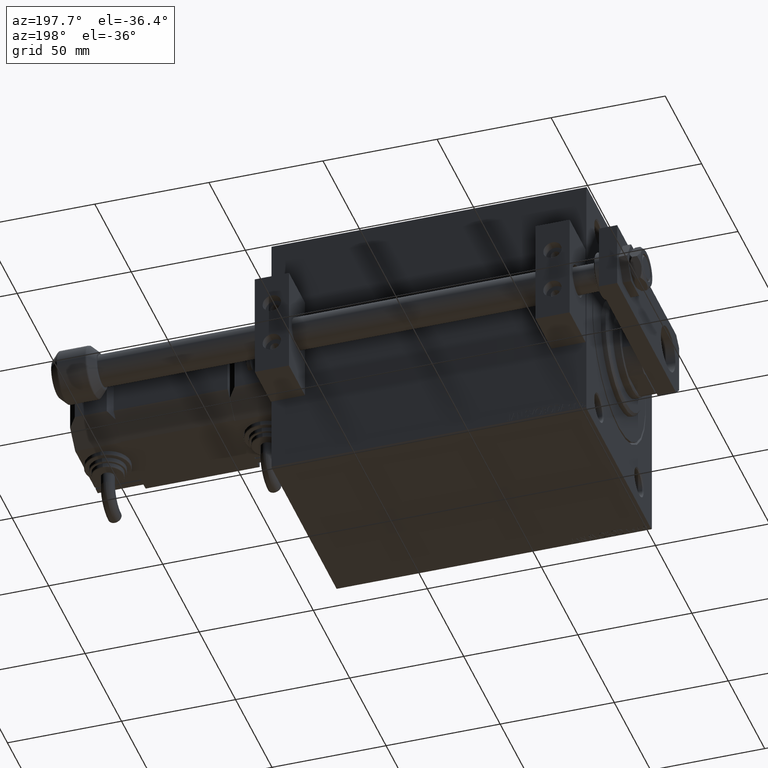
[diagram: clean part render]
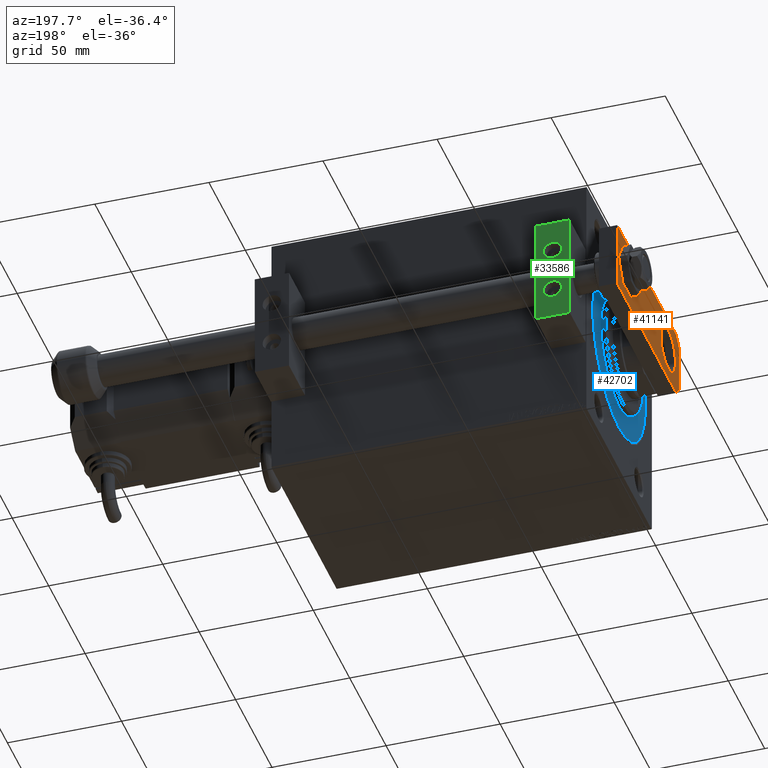
[diagram: same view with three faces highlighted in distinct colors, each labeled with its STEP entity id]
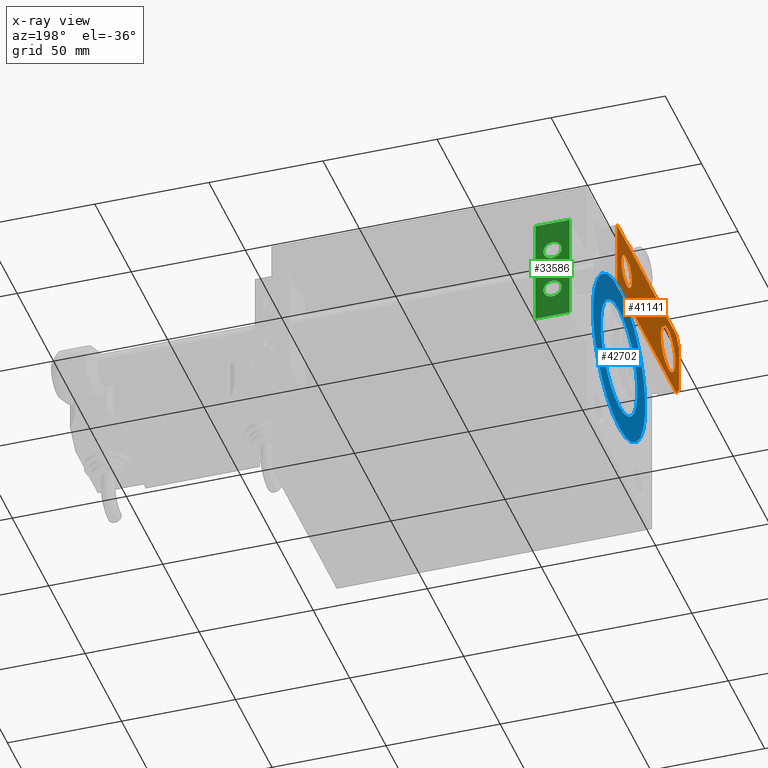
[diagram: x-ray of the same camera — body ghosted, the three highlighted faces saturated]
A machine part, auxiliary view with three faces highlighted in distinct colors.
The next image is the same camera in x-ray (body ghosted, the three faces saturated) — at least one of them is partly hidden behind the body in this view.
Their STEP definitions:

[orange] entity #41141 — the highlighted planar face has unit normal (-1, 0, 0).
#984 = CARTESIAN_POINT ( 'NONE',  ( 5.499999999999982236, -5.500000000000002665, 8.000000000000000000 ) ) ;
#1322 = DIRECTION ( 'NONE',  ( 0.000000000000000000, 0.000000000000000000, 1.000000000000000000 ) ) ;
#1430 = DIRECTION ( 'NONE',  ( -0.000000000000000000, 0.000000000000000000, 1.000000000000000000 ) ) ;
#1681 = VECTOR ( 'NONE', #5182, 1000.000000000000000 ) ;
#2044 = VECTOR ( 'NONE', #17246, 1000.000000000000000 ) ;
#2985 = EDGE_LOOP ( 'NONE', ( #17978, #27520, #6879, #44373, #8764, #28452 ) ) ;
#3866 = VERTEX_POINT ( 'NONE', #7601 ) ;
#4244 = DIRECTION ( 'NONE',  ( 1.000000000000000000, 0.000000000000000000, 0.000000000000000000 ) ) ;
#4734 = FACE_BOUND ( 'NONE', #40351, .T. ) ;
#5153 = LINE ( 'NONE', #39771, #30572 ) ;
#5182 = DIRECTION ( 'NONE',  ( -1.000000000000000000, 0.000000000000000000, 0.000000000000000000 ) ) ;
#5885 = VERTEX_POINT ( 'NONE', #28007 ) ;
#6879 = ORIENTED_EDGE ( 'NONE', *, *, #39699, .T. ) ;
#7144 = CARTESIAN_POINT ( 'NONE',  ( 0.000000000000000000, 15.00000000000000711, 8.000000000000000000 ) ) ;
#7601 = CARTESIAN_POINT ( 'NONE',  ( 15.00000000000000888, 3.999999999999989786, 8.000000000000000000 ) ) ;
#7888 = VERTEX_POINT ( 'NONE', #24776 ) ;
#8400 = CARTESIAN_POINT ( 'NONE',  ( 15.00000000000000178, 85.00000000000000000, 8.000000000000000000 ) ) ;
#8631 = CIRCLE ( 'NONE', #47394, 7.000000000000002665 ) ;
#8764 = ORIENTED_EDGE ( 'NONE', *, *, #35322, .T. ) ;
#9157 = EDGE_CURVE ( 'NONE', #20811, #33171, #32466, .T. ) ;
#10406 = EDGE_CURVE ( 'NONE', #33171, #21174, #14501, .T. ) ;
#10686 = AXIS2_PLACEMENT_3D ( 'NONE', #23924, #1430, #16085 ) ;
#11865 = DIRECTION ( 'NONE',  ( 0.7071067811865489050, 0.7071067811865462405, -0.000000000000000000 ) ) ;
#12014 = EDGE_CURVE ( 'NONE', #46139, #3866, #15393, .T. ) ;
#12203 = EDGE_LOOP ( 'NONE', ( #21127, #47848 ) ) ;
#12540 = FACE_BOUND ( 'NONE', #12203, .T. ) ;
#12929 = AXIS2_PLACEMENT_3D ( 'NONE', #7144, #41022, #29643 ) ;
#13877 = VERTEX_POINT ( 'NONE', #30755 ) ;
#14501 = LINE ( 'NONE', #29925, #33211 ) ;
#14693 = VECTOR ( 'NONE', #4244, 1000.000000000000000 ) ;
#15393 = LINE ( 'NONE', #984, #37182 ) ;
#16085 = DIRECTION ( 'NONE',  ( 1.000000000000000000, 0.000000000000000000, 0.000000000000000000 ) ) ;
#16960 = DIRECTION ( 'NONE',  ( 1.000000000000000000, 0.000000000000000000, 0.000000000000000000 ) ) ;
#17064 = FACE_OUTER_BOUND ( 'NONE', #2985, .T. ) ;
#17135 = AXIS2_PLACEMENT_3D ( 'NONE', #24651, #39815, #39564 ) ;
#17178 = EDGE_CURVE ( 'NONE', #49562, #5885, #49460, .T. ) ;
#17236 = ORIENTED_EDGE ( 'NONE', *, *, #31447, .F. ) ;
#17246 = DIRECTION ( 'NONE',  ( 0.7071067811865463515, -0.7071067811865487940, 0.000000000000000000 ) ) ;
#17978 = ORIENTED_EDGE ( 'NONE', *, *, #10406, .T. ) ;
#19356 = VERTEX_POINT ( 'NONE', #47411 ) ;
#20127 = PLANE ( 'NONE',  #10686 ) ;
#20811 = VERTEX_POINT ( 'NONE', #8400 ) ;
#21127 = ORIENTED_EDGE ( 'NONE', *, *, #17178, .F. ) ;
#21174 = VERTEX_POINT ( 'NONE', #35148 ) ;
#23295 = EDGE_CURVE ( 'NONE', #19356, #13877, #27868, .T. ) ;
#23924 = CARTESIAN_POINT ( 'NONE',  ( 0.000000000000000000, 0.000000000000000000, 8.000000000000000000 ) ) ;
#24026 = DIRECTION ( 'NONE',  ( 1.000000000000000000, 0.000000000000000000, 0.000000000000000000 ) ) ;
#24369 = CARTESIAN_POINT ( 'NONE',  ( -10.00000000000000178, 15.00000000000000711, 8.000000000000000000 ) ) ;
#24636 = CARTESIAN_POINT ( 'NONE',  ( 15.00000000000000178, 85.00000000000000000, 8.000000000000000000 ) ) ;
#24651 = CARTESIAN_POINT ( 'NONE',  ( 0.000000000000000000, 15.00000000000000711, 8.000000000000000000 ) ) ;
#24776 = CARTESIAN_POINT ( 'NONE',  ( -11.00000000000000533, 9.629649721936179265E-32, 8.000000000000000000 ) ) ;
#27478 = ORIENTED_EDGE ( 'NONE', *, *, #23295, .F. ) ;
#27520 = ORIENTED_EDGE ( 'NONE', *, *, #46286, .T. ) ;
#27860 = CARTESIAN_POINT ( 'NONE',  ( 1.963948872468190046E-17, 72.00000000000001421, 8.000000000000000000 ) ) ;
#27868 = CIRCLE ( 'NONE', #34343, 7.000000000000002665 ) ;
#28007 = CARTESIAN_POINT ( 'NONE',  ( 10.00000000000000178, 15.00000000000000888, 8.000000000000000000 ) ) ;
#28452 = ORIENTED_EDGE ( 'NONE', *, *, #9157, .T. ) ;
#29643 = DIRECTION ( 'NONE',  ( 1.000000000000000000, 0.000000000000000000, 0.000000000000000000 ) ) ;
#29925 = CARTESIAN_POINT ( 'NONE',  ( -15.00000000000000000, 85.00000000000000000, 8.000000000000000000 ) ) ;
#30572 = VECTOR ( 'NONE', #40513, 1000.000000000000000 ) ;
#30755 = CARTESIAN_POINT ( 'NONE',  ( 7.000000000000002665, 72.00000000000001421, 8.000000000000000000 ) ) ;
#30778 = LINE ( 'NONE', #43138, #14693 ) ;
#30990 = CARTESIAN_POINT ( 'NONE',  ( -15.00000000000000000, 85.00000000000000000, 8.000000000000000000 ) ) ;
#31447 = EDGE_CURVE ( 'NONE', #13877, #19356, #8631, .T. ) ;
#32466 = LINE ( 'NONE', #24636, #1681 ) ;
#33171 = VERTEX_POINT ( 'NONE', #30990 ) ;
#33211 = VECTOR ( 'NONE', #45862, 1000.000000000000000 ) ;
#34247 = CARTESIAN_POINT ( 'NONE',  ( 11.00000000000000533, 9.629649721936179265E-32, 8.000000000000000000 ) ) ;
#34343 = AXIS2_PLACEMENT_3D ( 'NONE', #47036, #43230, #24026 ) ;
#34743 = CIRCLE ( 'NONE', #12929, 10.00000000000000178 ) ;
#35148 = CARTESIAN_POINT ( 'NONE',  ( -15.00000000000000888, 4.000000000000017764, 8.000000000000000000 ) ) ;
#35322 = EDGE_CURVE ( 'NONE', #3866, #20811, #5153, .T. ) ;
#36383 = EDGE_CURVE ( 'NONE', #5885, #49562, #34743, .T. ) ;
#37182 = VECTOR ( 'NONE', #11865, 999.9999999999998863 ) ;
#37222 = CARTESIAN_POINT ( 'NONE',  ( -5.500000000000022204, -5.500000000000003553, 8.000000000000000000 ) ) ;
#39564 = DIRECTION ( 'NONE',  ( 1.000000000000000000, 0.000000000000000000, 0.000000000000000000 ) ) ;
#39699 = EDGE_CURVE ( 'NONE', #7888, #46139, #30778, .T. ) ;
#39771 = CARTESIAN_POINT ( 'NONE',  ( 15.00000000000000888, 9.629649721936179265E-32, 8.000000000000000000 ) ) ;
#39815 = DIRECTION ( 'NONE',  ( 0.000000000000000000, 0.000000000000000000, 1.000000000000000000 ) ) ;
#40351 = EDGE_LOOP ( 'NONE', ( #27478, #17236 ) ) ;
#40513 = DIRECTION ( 'NONE',  ( -8.163404592832032733E-17, 1.000000000000000000, 0.000000000000000000 ) ) ;
#41022 = DIRECTION ( 'NONE',  ( 0.000000000000000000, 0.000000000000000000, 1.000000000000000000 ) ) ;
#41141 = ADVANCED_FACE ( 'NONE', ( #4734, #17064, #12540 ), #20127, .T. ) ;
#43138 = CARTESIAN_POINT ( 'NONE',  ( -15.00000000000000888, 9.629649721936179265E-32, 8.000000000000000000 ) ) ;
#43230 = DIRECTION ( 'NONE',  ( 0.000000000000000000, 0.000000000000000000, 1.000000000000000000 ) ) ;
#44373 = ORIENTED_EDGE ( 'NONE', *, *, #12014, .T. ) ;
#45052 = LINE ( 'NONE', #37222, #2044 ) ;
#45862 = DIRECTION ( 'NONE',  ( -1.020425574104004122E-16, -1.000000000000000000, 0.000000000000000000 ) ) ;
#46139 = VERTEX_POINT ( 'NONE', #34247 ) ;
#46286 = EDGE_CURVE ( 'NONE', #21174, #7888, #45052, .T. ) ;
#47036 = CARTESIAN_POINT ( 'NONE',  ( 1.963948872468190046E-17, 72.00000000000001421, 8.000000000000000000 ) ) ;
#47394 = AXIS2_PLACEMENT_3D ( 'NONE', #27860, #1322, #16960 ) ;
#47411 = CARTESIAN_POINT ( 'NONE',  ( -7.000000000000002665, 72.00000000000001421, 8.000000000000000000 ) ) ;
#47848 = ORIENTED_EDGE ( 'NONE', *, *, #36383, .F. ) ;
#49460 = CIRCLE ( 'NONE', #17135, 10.00000000000000178 ) ;
#49562 = VERTEX_POINT ( 'NONE', #24369 ) ;

[blue] entity #42702 — the highlighted planar face has unit normal (1, -0, -0).
#2444 = AXIS2_PLACEMENT_3D ( 'NONE', #42505, #27338, #42752 ) ;
#4886 = DIRECTION ( 'NONE',  ( 0.000000000000000000, 0.000000000000000000, 1.000000000000000000 ) ) ;
#5650 = EDGE_LOOP ( 'NONE', ( #42704, #30827 ) ) ;
#6423 = FACE_OUTER_BOUND ( 'NONE', #5650, .T. ) ;
#6678 = CIRCLE ( 'NONE', #37363, 36.00000000000000000 ) ;
#6880 = EDGE_CURVE ( 'NONE', #37737, #40084, #46990, .T. ) ;
#7430 = DIRECTION ( 'NONE',  ( 0.000000000000000000, 0.000000000000000000, 1.000000000000000000 ) ) ;
#9402 = CARTESIAN_POINT ( 'NONE',  ( 0.000000000000000000, 0.000000000000000000, 0.000000000000000000 ) ) ;
#11214 = DIRECTION ( 'NONE',  ( -1.000000000000000000, 0.000000000000000000, 0.000000000000000000 ) ) ;
#11685 = EDGE_CURVE ( 'NONE', #40084, #37737, #12134, .T. ) ;
#11802 = CARTESIAN_POINT ( 'NONE',  ( 0.000000000000000000, 4.408728476930470856E-15, 36.00000000000000000 ) ) ;
#12134 = CIRCLE ( 'NONE', #2444, 25.00000000000000000 ) ;
#15254 = FACE_BOUND ( 'NONE', #49858, .T. ) ;
#16300 = AXIS2_PLACEMENT_3D ( 'NONE', #43224, #23515, #32108 ) ;
#16671 = EDGE_CURVE ( 'NONE', #29261, #41769, #40566, .T. ) ;
#16876 = CARTESIAN_POINT ( 'NONE',  ( 0.000000000000000000, 0.000000000000000000, 25.00000000000000000 ) ) ;
#17534 = EDGE_CURVE ( 'NONE', #41769, #29261, #6678, .T. ) ;
#18049 = AXIS2_PLACEMENT_3D ( 'NONE', #21836, #11214, #7430 ) ;
#18496 = CARTESIAN_POINT ( 'NONE',  ( 0.000000000000000000, 0.000000000000000000, -36.00000000000000000 ) ) ;
#20050 = CARTESIAN_POINT ( 'NONE',  ( 0.000000000000000000, 0.000000000000000000, 0.000000000000000000 ) ) ;
#21836 = CARTESIAN_POINT ( 'NONE',  ( 0.000000000000000000, 0.000000000000000000, 0.000000000000000000 ) ) ;
#23515 = DIRECTION ( 'NONE',  ( 1.000000000000000000, -0.000000000000000000, 0.000000000000000000 ) ) ;
#24830 = DIRECTION ( 'NONE',  ( -1.000000000000000000, 0.000000000000000000, 0.000000000000000000 ) ) ;
#25702 = ORIENTED_EDGE ( 'NONE', *, *, #11685, .F. ) ;
#26015 = AXIS2_PLACEMENT_3D ( 'NONE', #9402, #24830, #40243 ) ;
#26130 = PLANE ( 'NONE',  #18049 ) ;
#27338 = DIRECTION ( 'NONE',  ( 1.000000000000000000, -0.000000000000000000, 0.000000000000000000 ) ) ;
#29261 = VERTEX_POINT ( 'NONE', #11802 ) ;
#30260 = ORIENTED_EDGE ( 'NONE', *, *, #6880, .F. ) ;
#30827 = ORIENTED_EDGE ( 'NONE', *, *, #16671, .F. ) ;
#32108 = DIRECTION ( 'NONE',  ( 0.000000000000000000, 0.000000000000000000, -1.000000000000000000 ) ) ;
#33135 = CARTESIAN_POINT ( 'NONE',  ( 0.000000000000000000, 3.061616997868383043E-15, -25.00000000000000000 ) ) ;
#37363 = AXIS2_PLACEMENT_3D ( 'NONE', #20050, #43790, #4886 ) ;
#37737 = VERTEX_POINT ( 'NONE', #33135 ) ;
#40084 = VERTEX_POINT ( 'NONE', #16876 ) ;
#40243 = DIRECTION ( 'NONE',  ( 0.000000000000000000, 0.000000000000000000, 1.000000000000000000 ) ) ;
#40566 = CIRCLE ( 'NONE', #26015, 36.00000000000000000 ) ;
#41769 = VERTEX_POINT ( 'NONE', #18496 ) ;
#42505 = CARTESIAN_POINT ( 'NONE',  ( 0.000000000000000000, 0.000000000000000000, 0.000000000000000000 ) ) ;
#42702 = ADVANCED_FACE ( 'NONE', ( #15254, #6423 ), #26130, .F. ) ;
#42704 = ORIENTED_EDGE ( 'NONE', *, *, #17534, .F. ) ;
#42752 = DIRECTION ( 'NONE',  ( 0.000000000000000000, 0.000000000000000000, -1.000000000000000000 ) ) ;
#43224 = CARTESIAN_POINT ( 'NONE',  ( 0.000000000000000000, 0.000000000000000000, 0.000000000000000000 ) ) ;
#43790 = DIRECTION ( 'NONE',  ( -1.000000000000000000, 0.000000000000000000, 0.000000000000000000 ) ) ;
#46990 = CIRCLE ( 'NONE', #16300, 25.00000000000000000 ) ;
#49858 = EDGE_LOOP ( 'NONE', ( #25702, #30260 ) ) ;

[green] entity #33586 — the highlighted planar face has unit normal (0, 1, 0).
#114 = CIRCLE ( 'NONE', #13021, 4.000000000000000888 ) ;
#827 = DIRECTION ( 'NONE',  ( 0.000000000000000000, 0.000000000000000000, -1.000000000000000000 ) ) ;
#1598 = VERTEX_POINT ( 'NONE', #48717 ) ;
#1736 = EDGE_CURVE ( 'NONE', #39657, #40641, #114, .T. ) ;
#2514 = CARTESIAN_POINT ( 'NONE',  ( 15.00000000000000000, 11.00000000000000355, -23.99999999999999289 ) ) ;
#3491 = VECTOR ( 'NONE', #827, 1000.000000000000000 ) ;
#3835 = CARTESIAN_POINT ( 'NONE',  ( 7.500000000000001776, 11.00000000000000355, 14.00000000000000178 ) ) ;
#4637 = LINE ( 'NONE', #47089, #3491 ) ;
#5613 = PLANE ( 'NONE',  #15153 ) ;
#6629 = EDGE_CURVE ( 'NONE', #37061, #47941, #4637, .T. ) ;
#6743 = VERTEX_POINT ( 'NONE', #25312 ) ;
#6994 = EDGE_CURVE ( 'NONE', #47941, #6743, #36158, .T. ) ;
#9078 = AXIS2_PLACEMENT_3D ( 'NONE', #45223, #41182, #48521 ) ;
#9616 = CARTESIAN_POINT ( 'NONE',  ( 0.000000000000000000, 11.00000000000000355, 24.00000000000000711 ) ) ;
#9861 = DIRECTION ( 'NONE',  ( 0.000000000000000000, 0.000000000000000000, -1.000000000000000000 ) ) ;
#10021 = AXIS2_PLACEMENT_3D ( 'NONE', #24843, #43114, #35543 ) ;
#10073 = DIRECTION ( 'NONE',  ( -1.000000000000000000, -0.000000000000000000, -0.000000000000000000 ) ) ;
#10378 = DIRECTION ( 'NONE',  ( 0.000000000000000000, -0.000000000000000000, 1.000000000000000000 ) ) ;
#11611 = ORIENTED_EDGE ( 'NONE', *, *, #20604, .F. ) ;
#12107 = CARTESIAN_POINT ( 'NONE',  ( 0.000000000000000000, 11.00000000000000355, 24.00000000000000711 ) ) ;
#12297 = ORIENTED_EDGE ( 'NONE', *, *, #48621, .F. ) ;
#12487 = AXIS2_PLACEMENT_3D ( 'NONE', #45577, #34468, #15236 ) ;
#13021 = AXIS2_PLACEMENT_3D ( 'NONE', #25944, #22657, #41366 ) ;
#13193 = FACE_OUTER_BOUND ( 'NONE', #45234, .T. ) ;
#15059 = VECTOR ( 'NONE', #9861, 1000.000000000000000 ) ;
#15153 = AXIS2_PLACEMENT_3D ( 'NONE', #22017, #36452, #10378 ) ;
#15236 = DIRECTION ( 'NONE',  ( 0.000000000000000000, 0.000000000000000000, 1.000000000000000000 ) ) ;
#17949 = LINE ( 'NONE', #9616, #15059 ) ;
#20525 = EDGE_CURVE ( 'NONE', #38787, #1598, #39921, .T. ) ;
#20604 = EDGE_CURVE ( 'NONE', #37061, #46689, #37707, .T. ) ;
#21019 = FACE_BOUND ( 'NONE', #44664, .T. ) ;
#21056 = ORIENTED_EDGE ( 'NONE', *, *, #20525, .T. ) ;
#21136 = VECTOR ( 'NONE', #10073, 1000.000000000000000 ) ;
#22017 = CARTESIAN_POINT ( 'NONE',  ( 15.00000000000000000, 11.00000000000000355, 24.00000000000000711 ) ) ;
#22158 = EDGE_CURVE ( 'NONE', #40641, #39657, #43165, .T. ) ;
#22657 = DIRECTION ( 'NONE',  ( 0.000000000000000000, 1.000000000000000000, -6.065466699219605527E-17 ) ) ;
#23589 = CIRCLE ( 'NONE', #9078, 4.000000000000000000 ) ;
#24843 = CARTESIAN_POINT ( 'NONE',  ( 7.500000000000001776, 11.00000000000000355, 10.00000000000000178 ) ) ;
#25312 = CARTESIAN_POINT ( 'NONE',  ( 0.000000000000000000, 11.00000000000000355, -23.99999999999999289 ) ) ;
#25727 = ORIENTED_EDGE ( 'NONE', *, *, #6629, .T. ) ;
#25944 = CARTESIAN_POINT ( 'NONE',  ( 7.500000000000001776, 11.00000000000000355, -10.00000000000000178 ) ) ;
#28334 = ORIENTED_EDGE ( 'NONE', *, *, #1736, .F. ) ;
#28972 = CARTESIAN_POINT ( 'NONE',  ( 15.00000000000000000, 11.00000000000000355, -23.99999999999999289 ) ) ;
#29861 = CARTESIAN_POINT ( 'NONE',  ( 15.00000000000000000, 11.00000000000000355, 24.00000000000000711 ) ) ;
#30502 = ORIENTED_EDGE ( 'NONE', *, *, #39867, .T. ) ;
#31498 = EDGE_LOOP ( 'NONE', ( #21056, #30502 ) ) ;
#32447 = ORIENTED_EDGE ( 'NONE', *, *, #6994, .T. ) ;
#32756 = CARTESIAN_POINT ( 'NONE',  ( 15.00000000000000000, 11.00000000000000355, 24.00000000000000711 ) ) ;
#33586 = ADVANCED_FACE ( 'NONE', ( #13193, #21019, #40241 ), #5613, .T. ) ;
#33911 = DIRECTION ( 'NONE',  ( -1.000000000000000000, -0.000000000000000000, -0.000000000000000000 ) ) ;
#34468 = DIRECTION ( 'NONE',  ( 0.000000000000000000, 1.000000000000000000, -6.065466699219605527E-17 ) ) ;
#35543 = DIRECTION ( 'NONE',  ( 0.000000000000000000, 0.000000000000000000, 1.000000000000000000 ) ) ;
#36158 = LINE ( 'NONE', #2514, #21136 ) ;
#36452 = DIRECTION ( 'NONE',  ( -0.000000000000000000, 1.000000000000000000, 0.000000000000000000 ) ) ;
#37061 = VERTEX_POINT ( 'NONE', #32756 ) ;
#37707 = LINE ( 'NONE', #29861, #40709 ) ;
#38787 = VERTEX_POINT ( 'NONE', #3835 ) ;
#39657 = VERTEX_POINT ( 'NONE', #39682 ) ;
#39682 = CARTESIAN_POINT ( 'NONE',  ( 7.500000000000001776, 11.00000000000000355, -6.000000000000000888 ) ) ;
#39867 = EDGE_CURVE ( 'NONE', #1598, #38787, #23589, .T. ) ;
#39921 = CIRCLE ( 'NONE', #10021, 4.000000000000000000 ) ;
#40241 = FACE_BOUND ( 'NONE', #31498, .T. ) ;
#40641 = VERTEX_POINT ( 'NONE', #41013 ) ;
#40709 = VECTOR ( 'NONE', #33911, 1000.000000000000000 ) ;
#41013 = CARTESIAN_POINT ( 'NONE',  ( 7.500000000000002665, 11.00000000000000355, -14.00000000000000178 ) ) ;
#41182 = DIRECTION ( 'NONE',  ( 3.081487911019577365E-33, -1.000000000000000000, 4.418865812115433188E-17 ) ) ;
#41366 = DIRECTION ( 'NONE',  ( 0.000000000000000000, 0.000000000000000000, 1.000000000000000000 ) ) ;
#43114 = DIRECTION ( 'NONE',  ( 3.081487911019577365E-33, -1.000000000000000000, 4.418865812115433188E-17 ) ) ;
#43165 = CIRCLE ( 'NONE', #12487, 4.000000000000000888 ) ;
#44664 = EDGE_LOOP ( 'NONE', ( #28334, #49348 ) ) ;
#45223 = CARTESIAN_POINT ( 'NONE',  ( 7.500000000000001776, 11.00000000000000355, 10.00000000000000178 ) ) ;
#45234 = EDGE_LOOP ( 'NONE', ( #12297, #11611, #25727, #32447 ) ) ;
#45577 = CARTESIAN_POINT ( 'NONE',  ( 7.500000000000001776, 11.00000000000000355, -10.00000000000000178 ) ) ;
#46689 = VERTEX_POINT ( 'NONE', #12107 ) ;
#47089 = CARTESIAN_POINT ( 'NONE',  ( 15.00000000000000000, 11.00000000000000355, 24.00000000000000711 ) ) ;
#47941 = VERTEX_POINT ( 'NONE', #28972 ) ;
#48521 = DIRECTION ( 'NONE',  ( 0.000000000000000000, 0.000000000000000000, 1.000000000000000000 ) ) ;
#48621 = EDGE_CURVE ( 'NONE', #46689, #6743, #17949, .T. ) ;
#48717 = CARTESIAN_POINT ( 'NONE',  ( 7.500000000000002665, 11.00000000000000355, 6.000000000000000888 ) ) ;
#49348 = ORIENTED_EDGE ( 'NONE', *, *, #22158, .F. ) ;